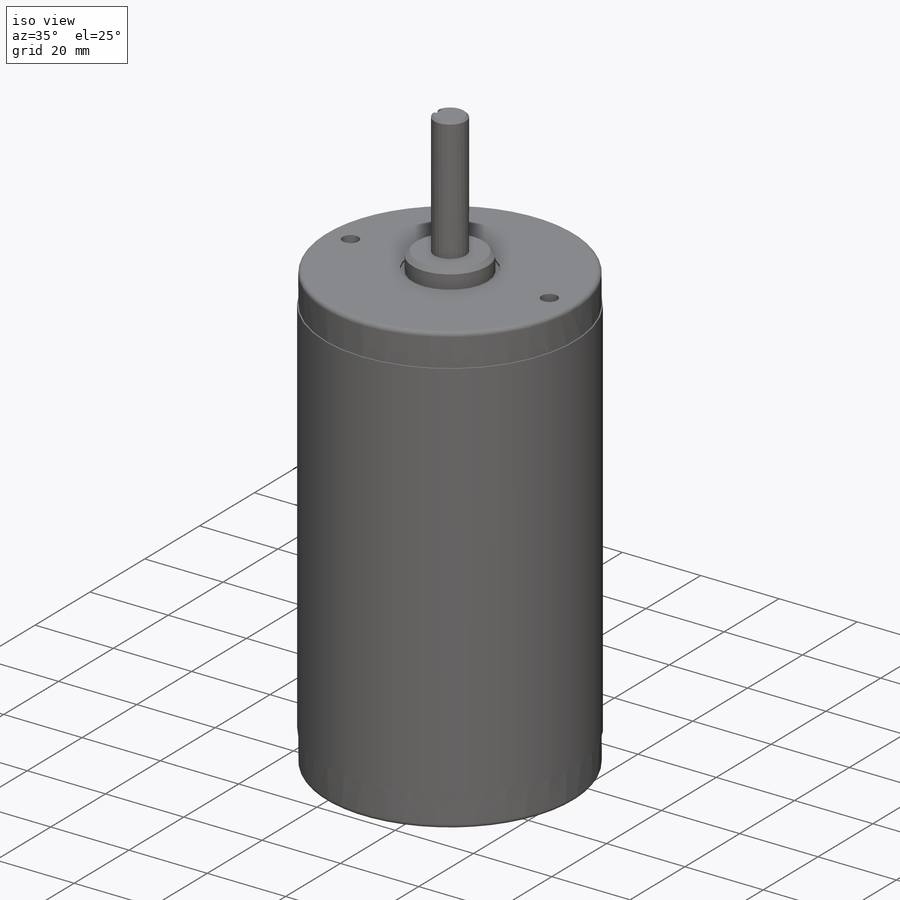
[diagram: iso view]
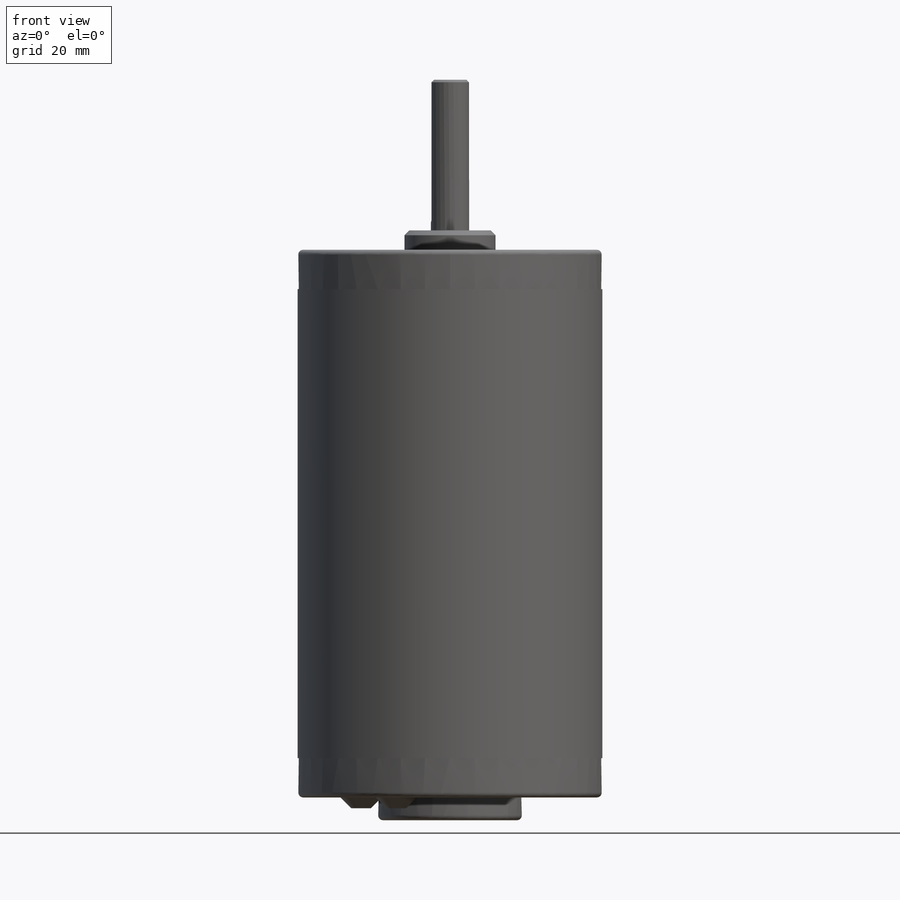
[diagram: front view]
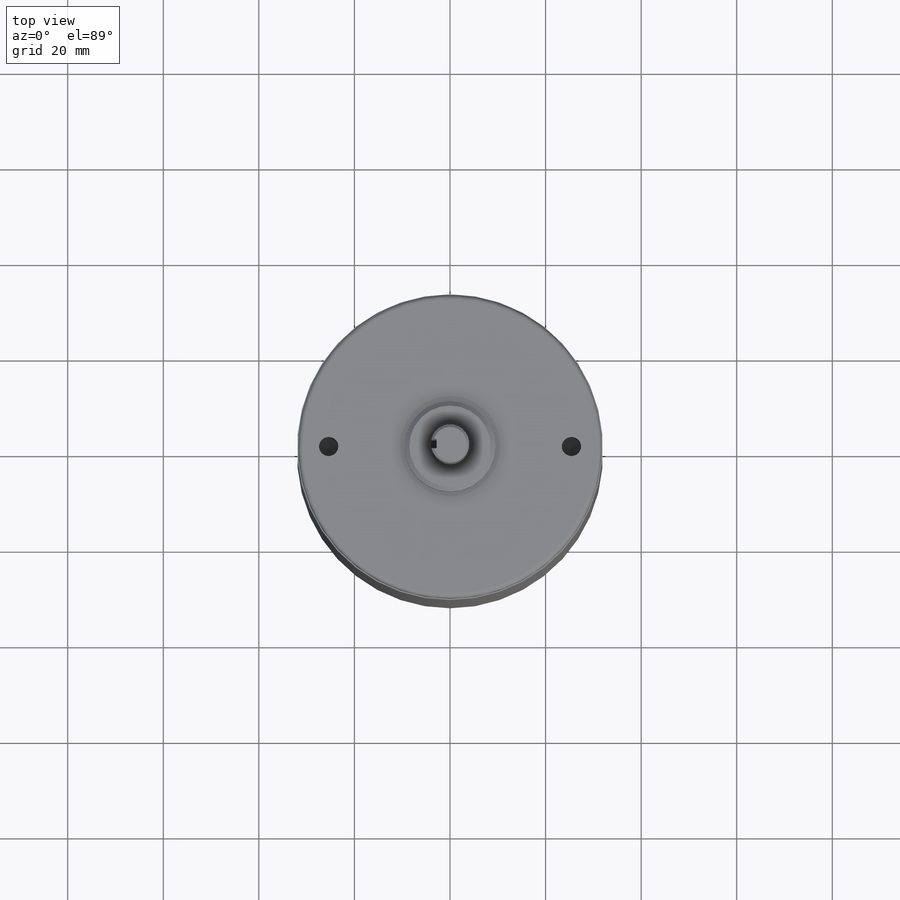
[diagram: top view]
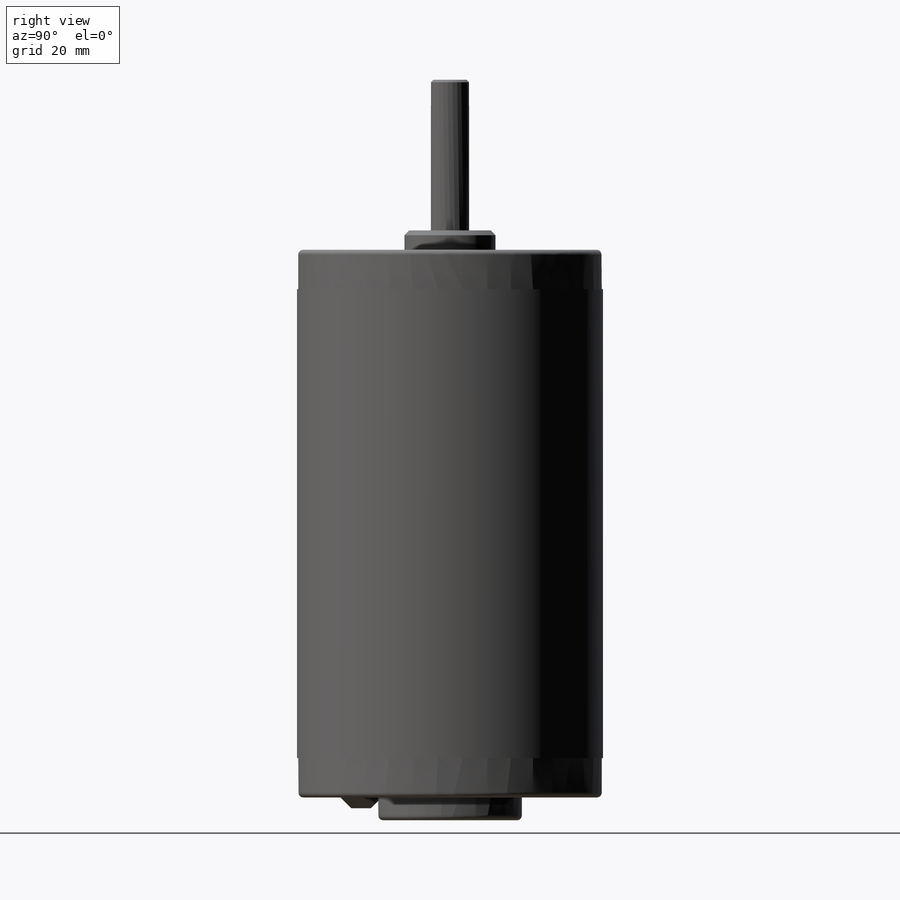
[diagram: right view]
SOLIDWORKS PART (.sldprt)
format: sldprt  version: not decoded by parser v0  size: 401,920 bytes
history: native  units: mm
features: sketch x5, chamfer x2, fillet x2, material x1, revolve x1, hole x1, cut_extrude x1, extrude x1, pattern_circular x1 (+16 scaffold rows collapsed)
feature tree (31):
  scaffold x16  (default folders/planes/origin — collapsed)
  material  "Material <not specified>"
  sketch  "Sketch1"  dims[c1.D4=~1.000001mm c1.D13=~1.000001mm c1.D1=~8.000009mm c1.D2=~154.931364mm c1.D3=30.0736mm c2.D4=64.008mm c2.D5=19.05mm c2.D6=21.0566mm c2.D7=0.508mm c2.D8=4.064mm c2.D9=0.254mm c2.D10=63.5mm c2.D11=114.6048mm c2.D12=4.7625mm c2.D13=62.0649mm c2.D14=98.1456mm]
  revolve  "Revolve1"  Angle=360deg
  chamfer  "Chamfer1"  Distance=1.016216mm Angle=45deg
  fillet  "Fillet1"  Radius=1mm
  hole  "A (0.234) Diameter Hole2"  [1 undecoded]
  sketch  "Sketch3"  dims[D1=25.4mm]
  sketch  "Sketch4"  dims[hole-wizard template sketch: 46 standard entries collapsed; hole parameters kept: c15.Диаметр отверстия=4.0386mm c15.Глубина отверстия=13.6144mm c15.D3=~14.816244mm c15.Угол заточки сверла=118.0deg]
  sketch  "Sketch5"  dims[D1=~1.20015mm D2=~1.999996mm]
  cut_extrude  "Extrude1"  Depth=29.8mm
  fillet  "Fillet2"  Radius=12.7mm
  sketch  "Sketch6"  dims[c1.D1=8.636mm c1.D2=~23.999655mm c2.D2=~148.938738deg c2.D3=~21.721632mm c3.D2=~18.607091mm c4.D2=~31.061254deg c4.D3=~21.721619mm]
  extrude  "Extrude2"  Depth=2.25mm
  pattern_circular  "CirPattern1"  Count=2 Angle=27.877477deg ModelUUID=255
  chamfer  "Chamfer2"  Distance=0.508mm Angle=45deg
decode coverage: 13 of 14 modeling features carry decoded parameters
note: ~ marks probable driven/reference dimensions
note: 1 parameter value undecoded
note: suppression state not decoded; provenance and decode notes live in map.json
